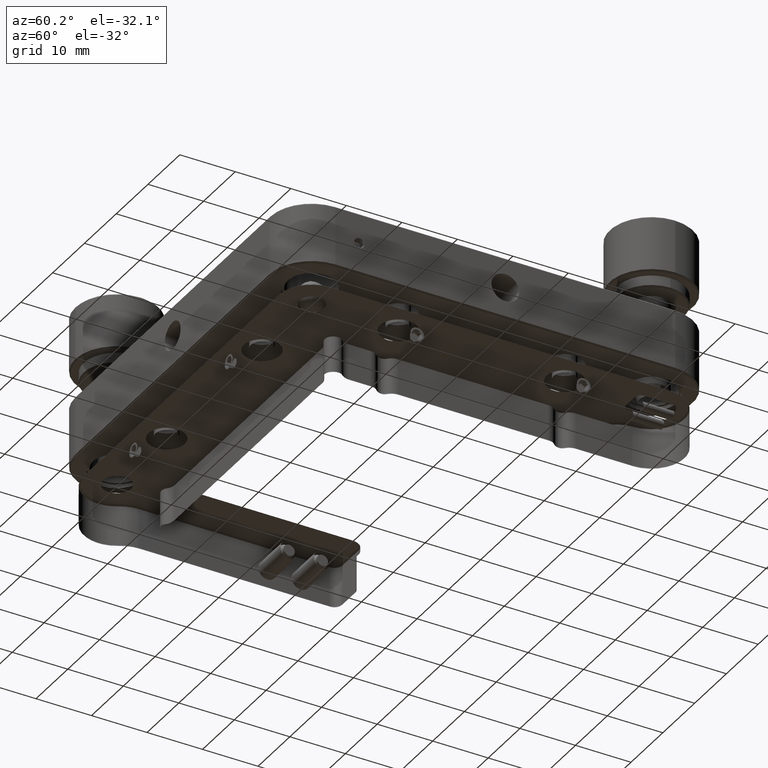
[diagram: clean part render]
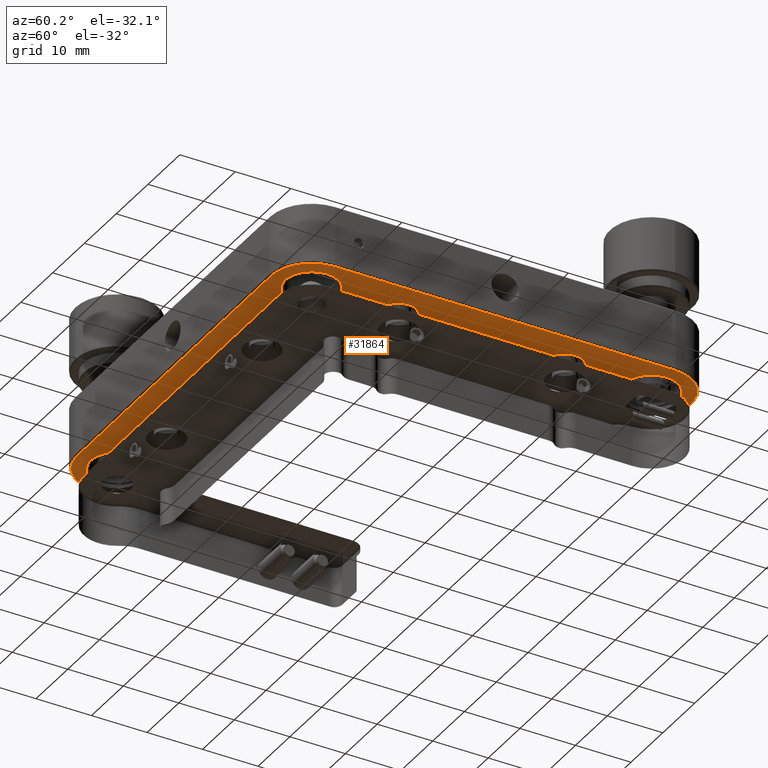
[diagram: same view with one face highlighted and labeled with its STEP entity id]
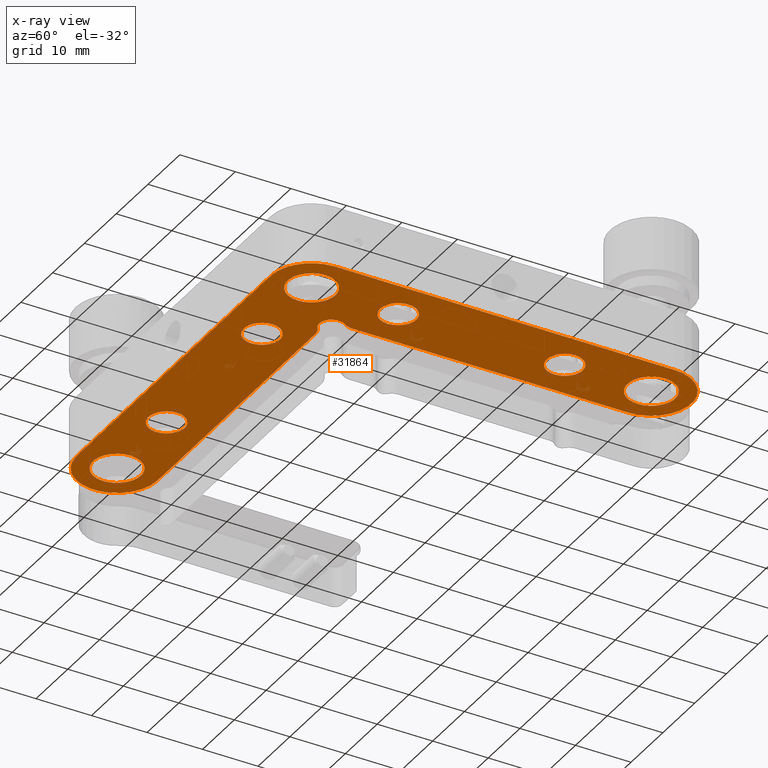
[diagram: x-ray of the same camera — body ghosted, the highlighted face saturated]
A machine part, auxiliary view. The second image highlights one B-rep face of the part: STEP entity #31864.
The next image is the same camera in x-ray: the body ghosted, the highlighted face saturated — about 1% of this face is hidden behind the body in this view.
In plain terms, the highlighted planar face has unit normal (0, -0, -1).
Its self-contained STEP definition (entity closure, byte-faithful):
#517 = DIRECTION ( 'NONE',  ( 4.625929269271489858E-16, -0.000000000000000000, -1.000000000000000000 ) ) ;
#960 = DIRECTION ( 'NONE',  ( -2.465190328815660140E-31, -3.743544432386654539E-46, 1.000000000000000000 ) ) ;
#1311 = FACE_OUTER_BOUND ( 'NONE', #55383, .T. ) ;
#1344 = ORIENTED_EDGE ( 'NONE', *, *, #21882, .T. ) ;
#2151 = DIRECTION ( 'NONE',  ( -0.000000000000000000, -0.000000000000000000, -1.000000000000000000 ) ) ;
#2238 = CIRCLE ( 'NONE', #60743, 4.300000000000001599 ) ;
#2782 = VECTOR ( 'NONE', #49437, 1000.000000000000000 ) ;
#2823 = EDGE_CURVE ( 'NONE', #30913, #39700, #33541, .T. ) ;
#2850 = CARTESIAN_POINT ( 'NONE',  ( 13.49180677554480035, -32.83355427905574686, 36.24439455682065159 ) ) ;
#3021 = CARTESIAN_POINT ( 'NONE',  ( 25.84180677554485328, -17.23355427905569925, 36.24439455682065159 ) ) ;
#3385 = CARTESIAN_POINT ( 'NONE',  ( 24.79180677554484902, -32.83355427905549817, 36.24439455682065159 ) ) ;
#3545 = DIRECTION ( 'NONE',  ( 1.000000000000000000, 0.000000000000000000, 0.000000000000000000 ) ) ;
#3577 = VERTEX_POINT ( 'NONE', #60444 ) ;
#3693 = CIRCLE ( 'NONE', #48059, 2.749999999923310234 ) ;
#3734 = VERTEX_POINT ( 'NONE', #50968 ) ;
#3878 = VECTOR ( 'NONE', #44693, 1000.000000000000000 ) ;
#3949 = ORIENTED_EDGE ( 'NONE', *, *, #28783, .T. ) ;
#4071 = DIRECTION ( 'NONE',  ( 1.000000000000000000, -1.261617073422980781E-15, 0.000000000000000000 ) ) ;
#4168 = DIRECTION ( 'NONE',  ( -2.465190328815660140E-31, -3.743544432386654539E-46, 1.000000000000000000 ) ) ;
#4290 = EDGE_LOOP ( 'NONE', ( #40851, #17943 ) ) ;
#4336 = EDGE_CURVE ( 'NONE', #27477, #29212, #33616, .T. ) ;
#4669 = VERTEX_POINT ( 'NONE', #17159 ) ;
#5246 = DIRECTION ( 'NONE',  ( 1.000000000000000000, -0.000000000000000000, 2.465190328815660140E-31 ) ) ;
#5556 = CARTESIAN_POINT ( 'NONE',  ( -1.508193224455170123, -25.58355427905570068, 36.24439455682065159 ) ) ;
#6443 = ORIENTED_EDGE ( 'NONE', *, *, #42161, .T. ) ;
#7003 = ORIENTED_EDGE ( 'NONE', *, *, #39381, .T. ) ;
#7042 = CARTESIAN_POINT ( 'NONE',  ( -32.10819322445495771, -32.83355427905569712, 36.24439455682065159 ) ) ;
#8662 = CARTESIAN_POINT ( 'NONE',  ( 29.09180677554485328, -17.23355427905569925, 36.24439455682065159 ) ) ;
#8673 = CARTESIAN_POINT ( 'NONE',  ( -1.508193224455170123, -40.08355427905575397, 36.24439455682065159 ) ) ;
#8727 = AXIS2_PLACEMENT_3D ( 'NONE', #8822, #36640, #55907 ) ;
#8735 = DIRECTION ( 'NONE',  ( -2.465190328815660140E-31, -3.743544432386654539E-46, 1.000000000000000000 ) ) ;
#8792 = CARTESIAN_POINT ( 'NONE',  ( 17.59180677554484973, -28.33355427905575041, 36.24439455683160105 ) ) ;
#8822 = CARTESIAN_POINT ( 'NONE',  ( 29.09180677554485328, 28.36644572094429861, 36.24439455682065159 ) ) ;
#9033 = CARTESIAN_POINT ( 'NONE',  ( 22.39180677559584964, -22.98355427899614867, 36.24439455677475053 ) ) ;
#9637 = ORIENTED_EDGE ( 'NONE', *, *, #15523, .T. ) ;
#9696 = ORIENTED_EDGE ( 'NONE', *, *, #52754, .T. ) ;
#10241 = DIRECTION ( 'NONE',  ( 4.625929269271489858E-16, -0.000000000000000000, -1.000000000000000000 ) ) ;
#10278 = DIRECTION ( 'NONE',  ( 1.000000000000000000, 0.000000000000000000, 0.000000000000000000 ) ) ;
#10428 = EDGE_CURVE ( 'NONE', #54395, #10562, #39046, .T. ) ;
#10562 = VERTEX_POINT ( 'NONE', #23702 ) ;
#10664 = CARTESIAN_POINT ( 'NONE',  ( 36.34180677554484618, 28.36644572094429861, 36.24439455682065159 ) ) ;
#11152 = CARTESIAN_POINT ( 'NONE',  ( 29.09180677554485328, -17.23355427905569925, 36.24439455682065159 ) ) ;
#11453 = DIRECTION ( 'NONE',  ( -2.465190328815660140E-31, -3.743544432386654539E-46, 1.000000000000000000 ) ) ;
#11480 = DIRECTION ( 'NONE',  ( -2.465190328815660140E-31, -3.743544432386654539E-46, 1.000000000000000000 ) ) ;
#11686 = DIRECTION ( 'NONE',  ( 1.000000000000000000, 0.000000000000000000, 0.000000000000000000 ) ) ;
#11849 = CIRCLE ( 'NONE', #12849, 4.300000000000001599 ) ;
#12078 = DIRECTION ( 'NONE',  ( 1.000000000000000000, 0.000000000000000000, 0.000000000000000000 ) ) ;
#12105 = CARTESIAN_POINT ( 'NONE',  ( 29.09180677554494920, 12.76644572094427943, 36.24439455682065159 ) ) ;
#12162 = EDGE_CURVE ( 'NONE', #41554, #27664, #11849, .T. ) ;
#12205 = CIRCLE ( 'NONE', #21325, 7.250000000000120792 ) ;
#12320 = CARTESIAN_POINT ( 'NONE',  ( 21.84180677556780026, -21.33355427905574686, 36.24439455679769395 ) ) ;
#12415 = CARTESIAN_POINT ( 'NONE',  ( 36.34180677554489591, -32.83355427905549817, 36.24439455682070133 ) ) ;
#12469 = CIRCLE ( 'NONE', #36690, 2.750000000032035707 ) ;
#12514 = AXIS2_PLACEMENT_3D ( 'NONE', #17694, #47057, #27473 ) ;
#12849 = AXIS2_PLACEMENT_3D ( 'NONE', #40653, #15393, #35907 ) ;
#13074 = CARTESIAN_POINT ( 'NONE',  ( 16.74180677554479857, -32.83355427905574686, 36.24439455682065159 ) ) ;
#13219 = CARTESIAN_POINT ( 'NONE',  ( 24.79180677554484902, 28.36644572094429861, 36.24439455682065159 ) ) ;
#13732 = EDGE_CURVE ( 'NONE', #3734, #21512, #48512, .T. ) ;
#13824 = EDGE_CURVE ( 'NONE', #50598, #23447, #58596, .T. ) ;
#13838 = VERTEX_POINT ( 'NONE', #59849 ) ;
#13882 = CARTESIAN_POINT ( 'NONE',  ( -27.80819322445495700, -32.83355427905569712, 36.24439455682065159 ) ) ;
#13909 = AXIS2_PLACEMENT_3D ( 'NONE', #44219, #960, #19587 ) ;
#14069 = ORIENTED_EDGE ( 'NONE', *, *, #17497, .T. ) ;
#14263 = FACE_BOUND ( 'NONE', #57159, .T. ) ;
#14590 = VERTEX_POINT ( 'NONE', #13074 ) ;
#14914 = ORIENTED_EDGE ( 'NONE', *, *, #10428, .T. ) ;
#15089 = CARTESIAN_POINT ( 'NONE',  ( 33.39180677554485044, -32.83355427905549817, 36.24439455682065159 ) ) ;
#15327 = CARTESIAN_POINT ( 'NONE',  ( 36.34180677554484618, -2.233554279055720126, 36.24439455682065159 ) ) ;
#15393 = DIRECTION ( 'NONE',  ( -2.465190328815660140E-31, -3.743544432386654539E-46, 1.000000000000000000 ) ) ;
#15523 = EDGE_CURVE ( 'NONE', #18747, #50598, #27012, .T. ) ;
#15779 = CARTESIAN_POINT ( 'NONE',  ( 21.84180677554485328, 28.36644572094429861, 36.24439455682065159 ) ) ;
#16402 = AXIS2_PLACEMENT_3D ( 'NONE', #38981, #10241, #48794 ) ;
#17159 = CARTESIAN_POINT ( 'NONE',  ( 33.39180677554485044, 28.36644572094429861, 36.24439455682065159 ) ) ;
#17456 = CARTESIAN_POINT ( 'NONE',  ( 20.59180677554484618, -24.33355427905570068, 36.24439455677475053 ) ) ;
#17497 = EDGE_CURVE ( 'NONE', #4669, #26965, #2238, .T. ) ;
#17694 = CARTESIAN_POINT ( 'NONE',  ( 29.09180677554494920, 12.76644572094427943, 36.24439455682065159 ) ) ;
#17943 = ORIENTED_EDGE ( 'NONE', *, *, #52601, .T. ) ;
#18219 = AXIS2_PLACEMENT_3D ( 'NONE', #2850, #41372, #45802 ) ;
#18378 = EDGE_CURVE ( 'NONE', #20981, #36616, #23399, .T. ) ;
#18684 = DIRECTION ( 'NONE',  ( -2.465190328815660140E-31, -3.743544432386654539E-46, 1.000000000000000000 ) ) ;
#18747 = VERTEX_POINT ( 'NONE', #15779 ) ;
#19432 = ORIENTED_EDGE ( 'NONE', *, *, #13824, .T. ) ;
#19587 = DIRECTION ( 'NONE',  ( 1.000000000000000000, 0.000000000000000000, 0.000000000000000000 ) ) ;
#19932 = CARTESIAN_POINT ( 'NONE',  ( -32.10819322445495771, -32.83355427905569712, 36.24439455682065159 ) ) ;
#20244 = DIRECTION ( 'NONE',  ( -2.465190328815660140E-31, -3.743544432386654539E-46, 1.000000000000000000 ) ) ;
#20249 = CARTESIAN_POINT ( 'NONE',  ( -1.508193224455170123, -2.233554279055720126, 36.24439455682065159 ) ) ;
#20447 = CARTESIAN_POINT ( 'NONE',  ( -19.75819322445520143, -32.83355427905549817, 36.24439455682065159 ) ) ;
#20981 = VERTEX_POINT ( 'NONE', #43795 ) ;
#21325 = AXIS2_PLACEMENT_3D ( 'NONE', #49440, #517, #10278 ) ;
#21398 = CARTESIAN_POINT ( 'NONE',  ( 24.59180677554484973, -21.33355427905570068, 36.24439455677475053 ) ) ;
#21450 = ORIENTED_EDGE ( 'NONE', *, *, #47943, .T. ) ;
#21512 = VERTEX_POINT ( 'NONE', #51639 ) ;
#21882 = EDGE_CURVE ( 'NONE', #10562, #54395, #44682, .T. ) ;
#23399 = CIRCLE ( 'NONE', #58704, 4.299999999999998046 ) ;
#23447 = VERTEX_POINT ( 'NONE', #12415 ) ;
#23702 = CARTESIAN_POINT ( 'NONE',  ( 32.34180677554485328, -17.23355427905569925, 36.24439455682065159 ) ) ;
#25415 = ORIENTED_EDGE ( 'NONE', *, *, #27117, .T. ) ;
#25429 = CARTESIAN_POINT ( 'NONE',  ( 21.84180677554485328, -2.233554279055720126, 36.24439455682065159 ) ) ;
#26252 = ORIENTED_EDGE ( 'NONE', *, *, #32493, .T. ) ;
#26965 = VERTEX_POINT ( 'NONE', #13219 ) ;
#27012 = CIRCLE ( 'NONE', #35085, 7.250000000000002665 ) ;
#27109 = VECTOR ( 'NONE', #38664, 1000.000000000000000 ) ;
#27117 = EDGE_CURVE ( 'NONE', #21512, #27945, #12469, .T. ) ;
#27473 = DIRECTION ( 'NONE',  ( 1.000000000000000000, 0.000000000000000000, 0.000000000000000000 ) ) ;
#27477 = VERTEX_POINT ( 'NONE', #38467 ) ;
#27532 = CARTESIAN_POINT ( 'NONE',  ( 29.09180677554485328, 28.36644572094429861, 36.24439455682065159 ) ) ;
#27664 = VERTEX_POINT ( 'NONE', #15089 ) ;
#27891 = VERTEX_POINT ( 'NONE', #20447 ) ;
#27928 = DIRECTION ( 'NONE',  ( -2.465190328815660140E-31, -3.743544432386654539E-46, 1.000000000000000000 ) ) ;
#27945 = VERTEX_POINT ( 'NONE', #59288 ) ;
#28029 = CIRCLE ( 'NONE', #13909, 3.249999999999999556 ) ;
#28783 = EDGE_CURVE ( 'NONE', #29212, #3734, #46707, .T. ) ;
#28787 = DIRECTION ( 'NONE',  ( -1.000000000000000000, 0.000000000000000000, -2.465190328815660140E-31 ) ) ;
#29212 = VERTEX_POINT ( 'NONE', #35461 ) ;
#30524 = AXIS2_PLACEMENT_3D ( 'NONE', #12105, #11480, #50025 ) ;
#30655 = AXIS2_PLACEMENT_3D ( 'NONE', #20249, #33841, #28787 ) ;
#30772 = EDGE_LOOP ( 'NONE', ( #14069, #56474 ) ) ;
#30913 = VERTEX_POINT ( 'NONE', #59323 ) ;
#31006 = CIRCLE ( 'NONE', #50172, 4.300000000000001599 ) ;
#31364 = DIRECTION ( 'NONE',  ( -1.000000000000000000, -1.541976423089685276E-15, 0.000000000000000000 ) ) ;
#31699 = CIRCLE ( 'NONE', #12514, 3.249999999999999556 ) ;
#31864 = ADVANCED_FACE ( 'NONE', ( #43947, #34470, #39511, #38577, #14263, #44258, #43634, #1311 ), #53738, .T. ) ;
#32029 = VERTEX_POINT ( 'NONE', #12320 ) ;
#32493 = EDGE_CURVE ( 'NONE', #39700, #30913, #31699, .T. ) ;
#32849 = EDGE_LOOP ( 'NONE', ( #7003, #9696 ) ) ;
#32893 = DIRECTION ( 'NONE',  ( -0.000000000000000000, -0.000000000000000000, -1.000000000000000000 ) ) ;
#32949 = CIRCLE ( 'NONE', #8727, 4.300000000000001599 ) ;
#33211 = DIRECTION ( 'NONE',  ( 1.000000000000000000, 0.000000000000000000, 0.000000000000000000 ) ) ;
#33541 = CIRCLE ( 'NONE', #30524, 3.249999999999999556 ) ;
#33616 = LINE ( 'NONE', #8673, #27109 ) ;
#33841 = DIRECTION ( 'NONE',  ( 2.465190328815660140E-31, -4.294509641185509835E-46, -1.000000000000000000 ) ) ;
#33924 = DIRECTION ( 'NONE',  ( 1.000000000000000000, 0.000000000000000000, 0.000000000000000000 ) ) ;
#34026 = CIRCLE ( 'NONE', #59219, 3.249999999999999556 ) ;
#34161 = ORIENTED_EDGE ( 'NONE', *, *, #49185, .T. ) ;
#34470 = FACE_BOUND ( 'NONE', #30772, .T. ) ;
#35000 = AXIS2_PLACEMENT_3D ( 'NONE', #8662, #27928, #42461 ) ;
#35085 = AXIS2_PLACEMENT_3D ( 'NONE', #27532, #32893, #3545 ) ;
#35461 = CARTESIAN_POINT ( 'NONE',  ( -32.10819322445495771, -40.08355427905579660, 36.24439455682070133 ) ) ;
#35907 = DIRECTION ( 'NONE',  ( -1.000000000000000000, 0.000000000000000000, 0.000000000000000000 ) ) ;
#36262 = CIRCLE ( 'NONE', #60474, 4.299999999999998046 ) ;
#36616 = VERTEX_POINT ( 'NONE', #13882 ) ;
#36640 = DIRECTION ( 'NONE',  ( -2.465190328815660140E-31, -3.743544432386654539E-46, 1.000000000000000000 ) ) ;
#36690 = AXIS2_PLACEMENT_3D ( 'NONE', #8792, #36918, #4071 ) ;
#36918 = DIRECTION ( 'NONE',  ( -0.000000000000000000, -0.000000000000000000, -1.000000000000000000 ) ) ;
#37696 = ORIENTED_EDGE ( 'NONE', *, *, #2823, .T. ) ;
#38049 = VECTOR ( 'NONE', #5246, 1000.000000000000000 ) ;
#38467 = CARTESIAN_POINT ( 'NONE',  ( 29.09180677554485328, -40.08355427905579660, 36.24439455682070133 ) ) ;
#38577 = FACE_BOUND ( 'NONE', #41475, .T. ) ;
#38664 = DIRECTION ( 'NONE',  ( -1.000000000000000000, 0.000000000000000000, -2.465190328815660140E-31 ) ) ;
#38981 = CARTESIAN_POINT ( 'NONE',  ( -32.10819322445495771, -32.83355427905569712, 36.24439455682075106 ) ) ;
#39046 = CIRCLE ( 'NONE', #35000, 3.249999999999999556 ) ;
#39381 = EDGE_CURVE ( 'NONE', #14590, #3577, #56539, .T. ) ;
#39511 = FACE_BOUND ( 'NONE', #48254, .T. ) ;
#39700 = VERTEX_POINT ( 'NONE', #51771 ) ;
#40068 = CIRCLE ( 'NONE', #53191, 3.249999999999999556 ) ;
#40653 = CARTESIAN_POINT ( 'NONE',  ( 29.09180677554485328, -32.83355427905549817, 36.24439455682065159 ) ) ;
#40851 = ORIENTED_EDGE ( 'NONE', *, *, #55670, .T. ) ;
#41152 = CARTESIAN_POINT ( 'NONE',  ( 29.09180677554485328, -32.83355427905549817, 36.24439455682065159 ) ) ;
#41270 = VERTEX_POINT ( 'NONE', #9033 ) ;
#41372 = DIRECTION ( 'NONE',  ( -2.465190328815660140E-31, -3.743544432386654539E-46, 1.000000000000000000 ) ) ;
#41475 = EDGE_LOOP ( 'NONE', ( #37696, #26252 ) ) ;
#41554 = VERTEX_POINT ( 'NONE', #3385 ) ;
#42161 = EDGE_CURVE ( 'NONE', #23447, #27477, #12205, .T. ) ;
#42461 = DIRECTION ( 'NONE',  ( 1.000000000000000000, 0.000000000000000000, 0.000000000000000000 ) ) ;
#43634 = FACE_BOUND ( 'NONE', #32849, .T. ) ;
#43795 = CARTESIAN_POINT ( 'NONE',  ( -36.40819322445495487, -32.83355427905569712, 36.24439455682065159 ) ) ;
#43947 = FACE_BOUND ( 'NONE', #50842, .T. ) ;
#44219 = CARTESIAN_POINT ( 'NONE',  ( -16.50819322445520143, -32.83355427905549817, 36.24439455682065159 ) ) ;
#44258 = FACE_BOUND ( 'NONE', #4290, .T. ) ;
#44682 = CIRCLE ( 'NONE', #45687, 3.249999999999999556 ) ;
#44693 = DIRECTION ( 'NONE',  ( 1.058678363445613831E-76, 1.000000000000000000, -4.294509641185509835E-46 ) ) ;
#45215 = ORIENTED_EDGE ( 'NONE', *, *, #59841, .T. ) ;
#45687 = AXIS2_PLACEMENT_3D ( 'NONE', #11152, #58240, #33924 ) ;
#45802 = DIRECTION ( 'NONE',  ( 1.000000000000000000, 0.000000000000000000, 0.000000000000000000 ) ) ;
#46512 = DIRECTION ( 'NONE',  ( -0.000000000000000000, -0.000000000000000000, 1.000000000000000000 ) ) ;
#46707 = CIRCLE ( 'NONE', #16402, 7.250000000000120792 ) ;
#47057 = DIRECTION ( 'NONE',  ( -2.465190328815660140E-31, -3.743544432386654539E-46, 1.000000000000000000 ) ) ;
#47436 = CARTESIAN_POINT ( 'NONE',  ( 13.49180677554480035, -32.83355427905574686, 36.24439455682065159 ) ) ;
#47593 = DIRECTION ( 'NONE',  ( 1.000000000000000000, 0.000000000000000000, 0.000000000000000000 ) ) ;
#47752 = DIRECTION ( 'NONE',  ( 1.000000000000000000, 0.000000000000000000, 0.000000000000000000 ) ) ;
#47943 = EDGE_CURVE ( 'NONE', #36616, #20981, #36262, .T. ) ;
#48059 = AXIS2_PLACEMENT_3D ( 'NONE', #21398, #2151, #61163 ) ;
#48254 = EDGE_LOOP ( 'NONE', ( #1344, #14914 ) ) ;
#48512 = LINE ( 'NONE', #5556, #38049 ) ;
#48560 = ORIENTED_EDGE ( 'NONE', *, *, #12162, .T. ) ;
#48575 = EDGE_CURVE ( 'NONE', #26965, #4669, #32949, .T. ) ;
#48794 = DIRECTION ( 'NONE',  ( 1.000000000000000000, 0.000000000000000000, 0.000000000000000000 ) ) ;
#49185 = EDGE_CURVE ( 'NONE', #41270, #32029, #3693, .T. ) ;
#49437 = DIRECTION ( 'NONE',  ( -1.058678363445613831E-76, -1.000000000000000000, 4.294509641185509835E-46 ) ) ;
#49440 = CARTESIAN_POINT ( 'NONE',  ( 29.09180677554485328, -32.83355427905549817, 36.24439455682075106 ) ) ;
#50025 = DIRECTION ( 'NONE',  ( 1.000000000000000000, 0.000000000000000000, 0.000000000000000000 ) ) ;
#50055 = LINE ( 'NONE', #25429, #3878 ) ;
#50172 = AXIS2_PLACEMENT_3D ( 'NONE', #41152, #50937, #60718 ) ;
#50598 = VERTEX_POINT ( 'NONE', #10664 ) ;
#50842 = EDGE_LOOP ( 'NONE', ( #48560, #45215 ) ) ;
#50937 = DIRECTION ( 'NONE',  ( -2.465190328815660140E-31, -3.743544432386654539E-46, 1.000000000000000000 ) ) ;
#50968 = CARTESIAN_POINT ( 'NONE',  ( -32.10819322445495771, -25.58355427905570068, 36.24439455682065159 ) ) ;
#51639 = CARTESIAN_POINT ( 'NONE',  ( 17.59180677554484973, -25.58355427903140011, 36.24439455683160105 ) ) ;
#51771 = CARTESIAN_POINT ( 'NONE',  ( 25.84180677554494920, 12.76644572094427943, 36.24439455682065159 ) ) ;
#52247 = AXIS2_PLACEMENT_3D ( 'NONE', #17456, #46512, #31364 ) ;
#52330 = CARTESIAN_POINT ( 'NONE',  ( 29.09180677554485328, 28.36644572094429861, 36.24439455682065159 ) ) ;
#52601 = EDGE_CURVE ( 'NONE', #27891, #13838, #40068, .T. ) ;
#52754 = EDGE_CURVE ( 'NONE', #3577, #14590, #34026, .T. ) ;
#53191 = AXIS2_PLACEMENT_3D ( 'NONE', #61951, #18684, #33211 ) ;
#53738 = PLANE ( 'NONE',  #30655 ) ;
#54395 = VERTEX_POINT ( 'NONE', #3021 ) ;
#54840 = ORIENTED_EDGE ( 'NONE', *, *, #13732, .T. ) ;
#55383 = EDGE_LOOP ( 'NONE', ( #3949, #54840, #25415, #56921, #34161, #56867, #9637, #19432, #6443, #56486 ) ) ;
#55670 = EDGE_CURVE ( 'NONE', #13838, #27891, #28029, .T. ) ;
#55907 = DIRECTION ( 'NONE',  ( 1.000000000000000000, 0.000000000000000000, 0.000000000000000000 ) ) ;
#56474 = ORIENTED_EDGE ( 'NONE', *, *, #48575, .T. ) ;
#56486 = ORIENTED_EDGE ( 'NONE', *, *, #4336, .T. ) ;
#56539 = CIRCLE ( 'NONE', #18219, 3.249999999999999556 ) ;
#56867 = ORIENTED_EDGE ( 'NONE', *, *, #57123, .T. ) ;
#56921 = ORIENTED_EDGE ( 'NONE', *, *, #62015, .T. ) ;
#57123 = EDGE_CURVE ( 'NONE', #32029, #18747, #50055, .T. ) ;
#57159 = EDGE_LOOP ( 'NONE', ( #21450, #60841 ) ) ;
#58240 = DIRECTION ( 'NONE',  ( -2.465190328815660140E-31, -3.743544432386654539E-46, 1.000000000000000000 ) ) ;
#58283 = CIRCLE ( 'NONE', #52247, 2.250000000001181721 ) ;
#58596 = LINE ( 'NONE', #15327, #2782 ) ;
#58704 = AXIS2_PLACEMENT_3D ( 'NONE', #7042, #11453, #12078 ) ;
#59219 = AXIS2_PLACEMENT_3D ( 'NONE', #47436, #4168, #47752 ) ;
#59288 = CARTESIAN_POINT ( 'NONE',  ( 19.24180677559320074, -26.13355427904810213, 36.24439455681594779 ) ) ;
#59323 = CARTESIAN_POINT ( 'NONE',  ( 32.34180677554494565, 12.76644572094427943, 36.24439455682065159 ) ) ;
#59841 = EDGE_CURVE ( 'NONE', #27664, #41554, #31006, .T. ) ;
#59849 = CARTESIAN_POINT ( 'NONE',  ( -13.25819322445520321, -32.83355427905549817, 36.24439455682065159 ) ) ;
#60444 = CARTESIAN_POINT ( 'NONE',  ( 10.24180677554480035, -32.83355427905574686, 36.24439455682065159 ) ) ;
#60474 = AXIS2_PLACEMENT_3D ( 'NONE', #19932, #20244, #11686 ) ;
#60718 = DIRECTION ( 'NONE',  ( -1.000000000000000000, 0.000000000000000000, 0.000000000000000000 ) ) ;
#60743 = AXIS2_PLACEMENT_3D ( 'NONE', #52330, #8735, #47593 ) ;
#60841 = ORIENTED_EDGE ( 'NONE', *, *, #18378, .T. ) ;
#61163 = DIRECTION ( 'NONE',  ( 1.000000000000000000, 1.261617073472860850E-15, 0.000000000000000000 ) ) ;
#61951 = CARTESIAN_POINT ( 'NONE',  ( -16.50819322445520143, -32.83355427905549817, 36.24439455682065159 ) ) ;
#62015 = EDGE_CURVE ( 'NONE', #27945, #41270, #58283, .T. ) ;